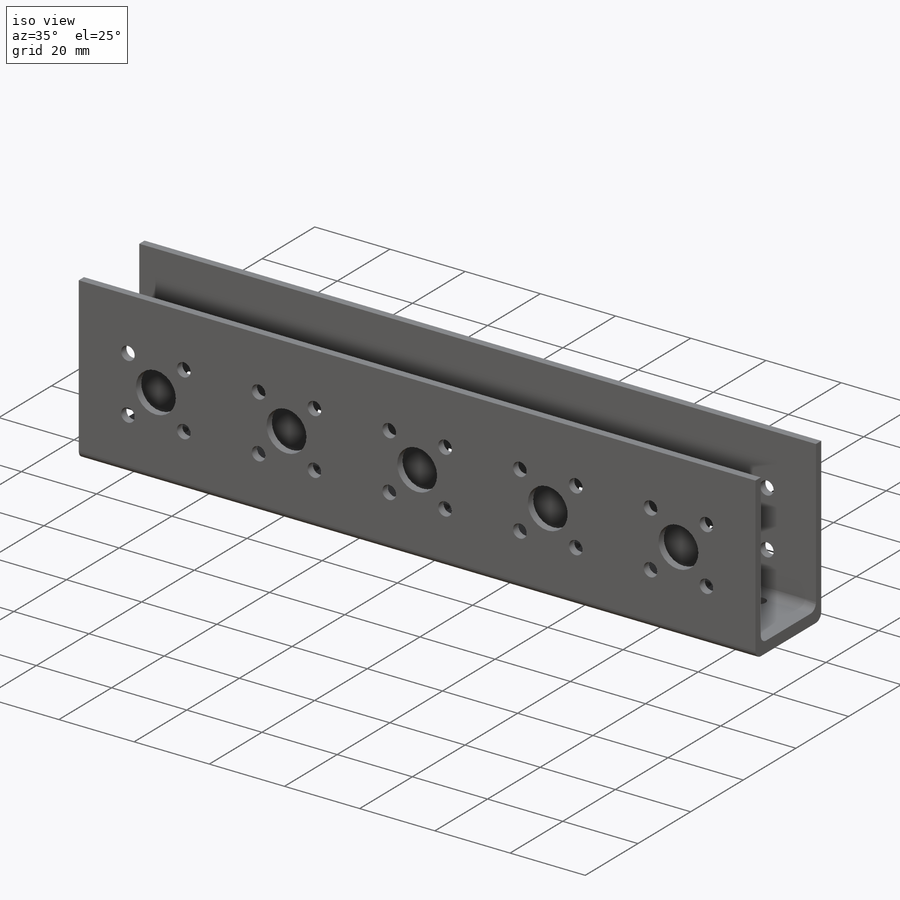
[diagram: iso view]
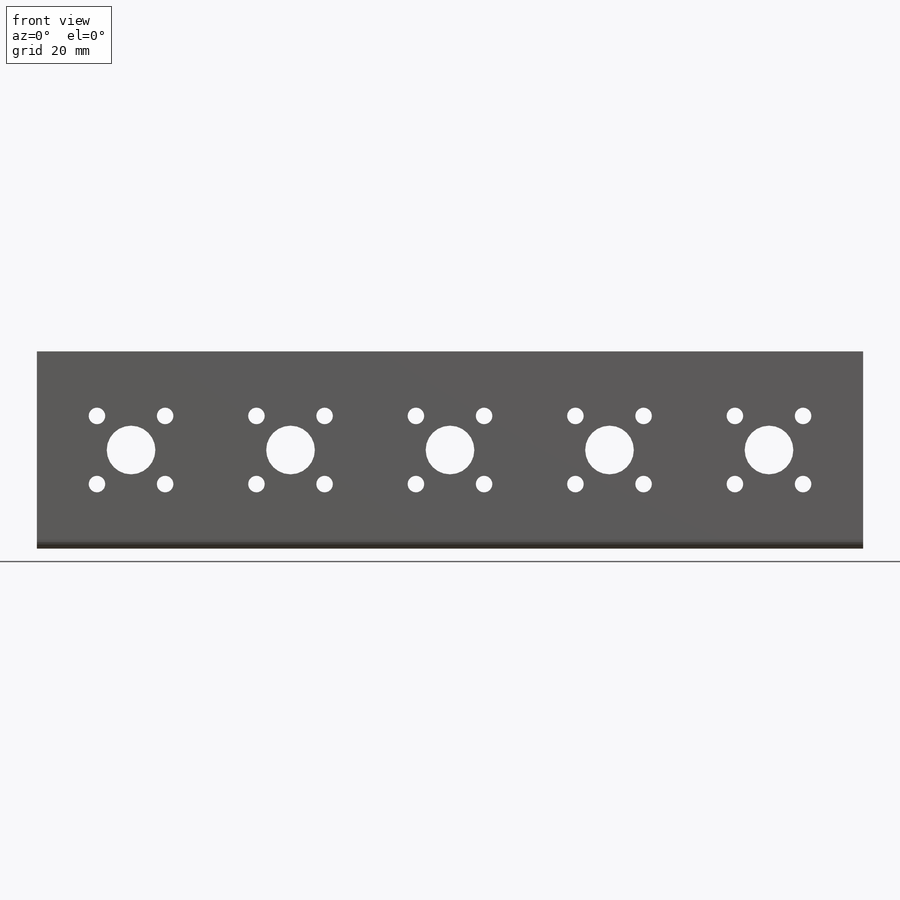
[diagram: front view]
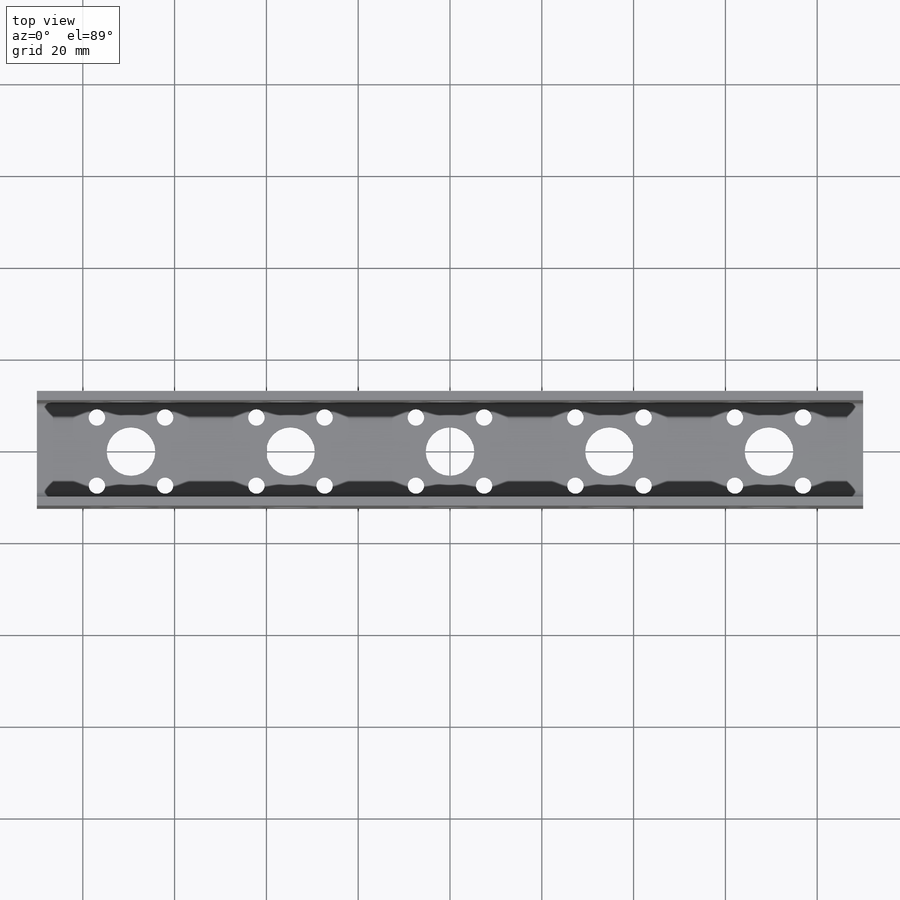
[diagram: top view]
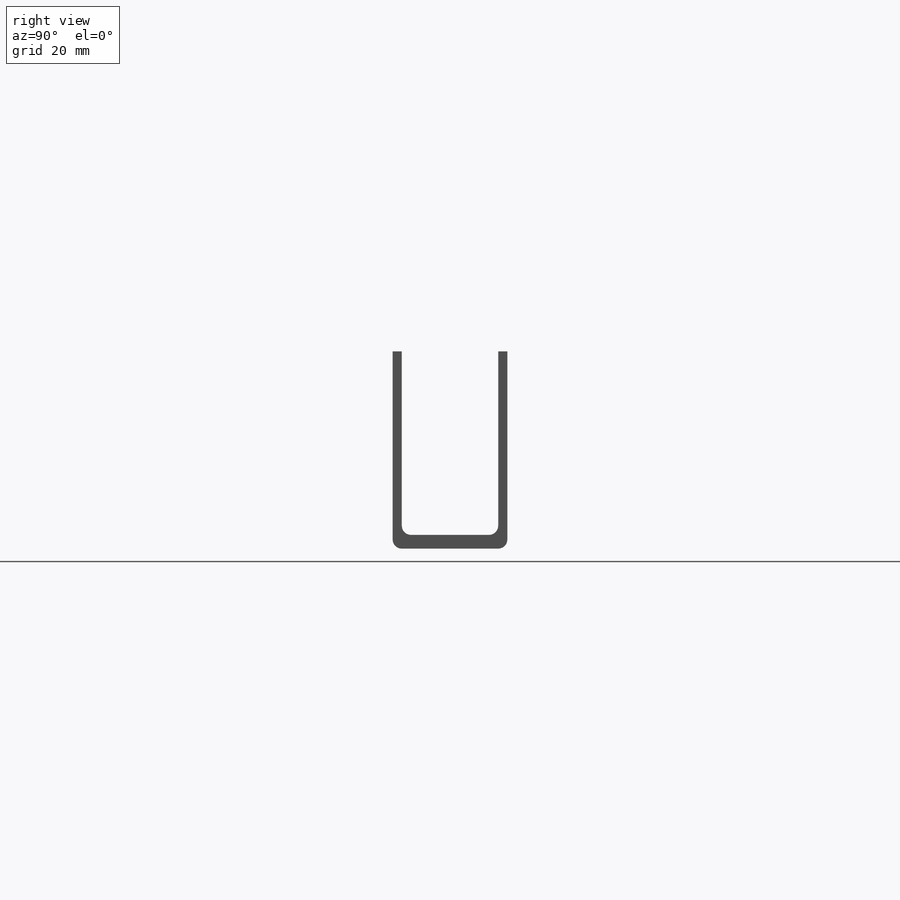
[diagram: right view]
SOLIDWORKS PART (.sldprt)
format: sldprt  version: not decoded by parser v0  size: 444,928 bytes
history: native  units: mm
features: sketch x4, pattern_linear x4, plane x3, extrude x2, cut_extrude x2, pattern_circular x2, material x1, fillet x1 (+8 scaffold rows collapsed)
feature tree (27):
  scaffold x8  (default folders/planes/origin — collapsed)
  material  "Material <sin especificar>"
  plane  "Alzado"
  plane  "Planta"
  plane  "Vista lateral"
  sketch  "Croquis1"  dims[D1=25.0mm D2=180.0mm]
  extrude  "Saliente-Extruir1"  Depth=3mm
  sketch  "Croquis2"  dims[D1=2.0mm]
  extrude  "Saliente-Extruir2"  Depth=40mm
  sketch  "Croquis3"  dims[c1.D2=3.6mm c1.D3=10.6mm c1.D4=21.0mm c1.D1=~8.888223mm c2.D1=45.0deg]
  cut_extrude  "Cortar-Extruir1"  Depth=10mm
  pattern_circular  "MatrizC1"  Count=4 Angle=360deg
  pattern_linear  "MatrizL1"  Count1=3 Count2=1 Spacing1=34.75mm Spacing2=10mm
  pattern_linear  "MatrizL2"  Count1=3 Count2=1 Spacing1=34.75mm Spacing2=10mm
  sketch  "Croquis4"  dims[c1.D2=21.0mm c1.D3=10.6mm c1.D4=3.6mm c1.D1=~6.427014mm c2.D1=45.0deg]
  cut_extrude  "Cortar-Extruir2"  [1 undecoded]
  pattern_circular  "MatrizC2"  Count=4 Angle=90deg
  pattern_linear  "MatrizL3"  Count1=3 Count2=1 Spacing1=34.745mm Spacing2=10mm
  pattern_linear  "MatrizL5"  Count1=3 Count2=1 Spacing1=34.75mm Spacing2=10mm
  fillet  "Redondeo1"  Radius=2mm
decode coverage: 14 of 15 modeling features carry decoded parameters
note: ~ marks probable driven/reference dimensions
note: 1 parameter value undecoded
note: suppression state not decoded; provenance and decode notes live in map.json
